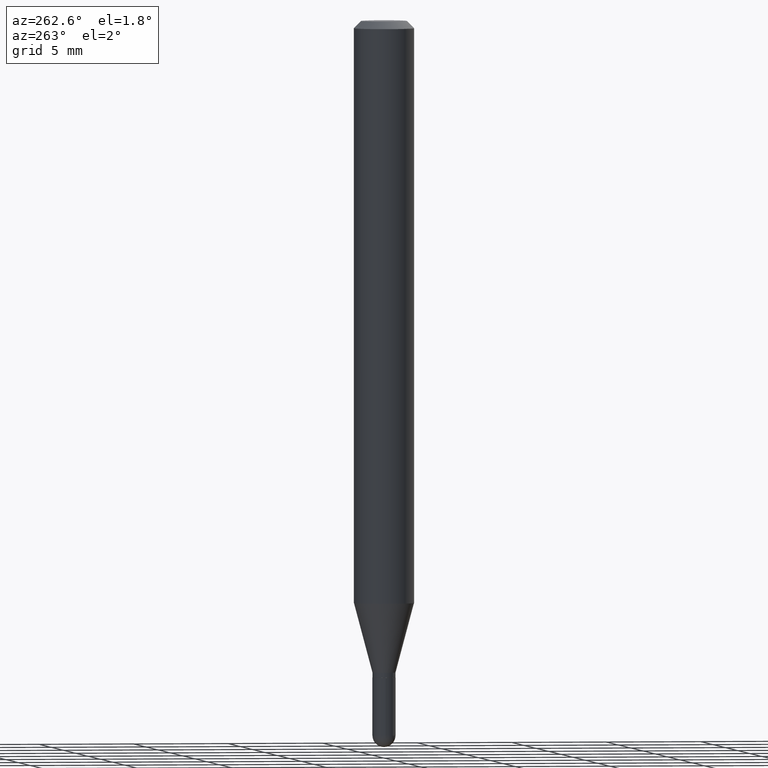
[diagram: clean part render]
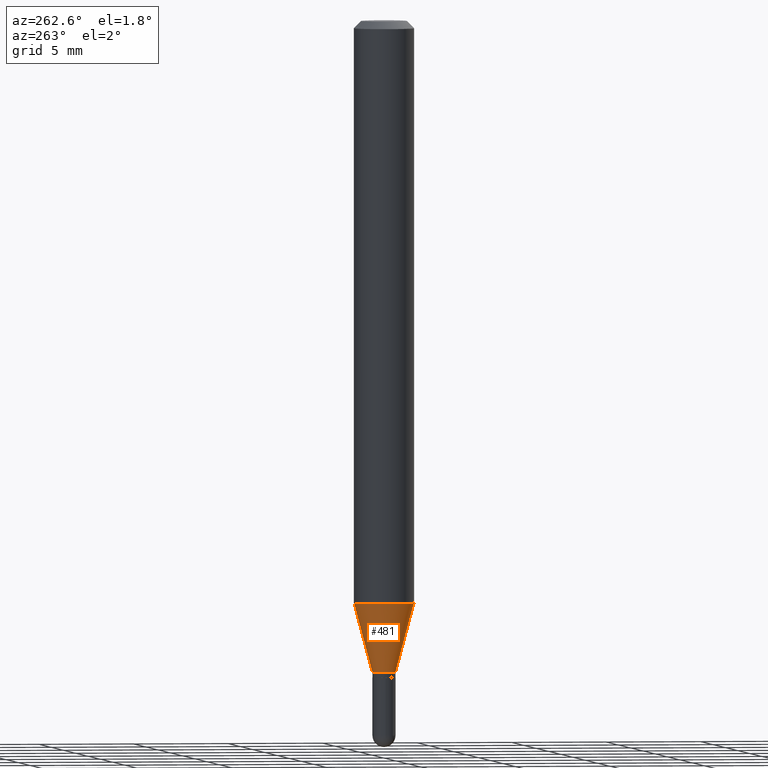
[diagram: same view with one face highlighted and labeled with its STEP entity id]
A machine part, auxiliary view. The second image highlights one B-rep face of the part: STEP entity #481.
In plain terms, the highlighted conical surface has half-angle 15 deg.
Its self-contained STEP definition (entity closure, byte-faithful):
#9 = LINE ( 'NONE', #160, #282 ) ;
#27 = VECTOR ( 'NONE', #382, 39.37007874015748143 ) ;
#38 = CIRCLE ( 'NONE', #319, 0.02399999999999992764 ) ;
#41 = ORIENTED_EDGE ( 'NONE', *, *, #52, .T. ) ;
#44 = DIRECTION ( 'NONE',  ( -2.445461197207060331E-29, 3.491492235332826977E-15, 1.000000000000000000 ) ) ;
#52 = EDGE_CURVE ( 'NONE', #468, #439, #38, .T. ) ;
#54 = DIRECTION ( 'NONE',  ( -2.445461197207060331E-29, 3.491492235332826977E-15, 1.000000000000000000 ) ) ;
#66 = AXIS2_PLACEMENT_3D ( 'NONE', #125, #54, #192 ) ;
#72 = CARTESIAN_POINT ( 'NONE',  ( -4.364351673553623829E-16, -0.06250000000000421885, -1.202316043908598475 ) ) ;
#81 = EDGE_LOOP ( 'NONE', ( #355, #41, #480, #466 ) ) ;
#110 = CIRCLE ( 'NONE', #66, 0.06250000000000000000 ) ;
#125 = CARTESIAN_POINT ( 'NONE',  ( 2.940217232157978499E-29, -4.197877131722955059E-15, -1.202316043908598697 ) ) ;
#135 = DIRECTION ( 'NONE',  ( -2.445461197207060331E-29, 3.491492235332826977E-15, 1.000000000000000000 ) ) ;
#157 = AXIS2_PLACEMENT_3D ( 'NONE', #483, #44, #359 ) ;
#160 = CARTESIAN_POINT ( 'NONE',  ( -1.675911042644369543E-16, -0.02400000000000462527, -1.346000000000000085 ) ) ;
#164 = VERTEX_POINT ( 'NONE', #294 ) ;
#178 = LINE ( 'NONE', #499, #27 ) ;
#192 = DIRECTION ( 'NONE',  ( -6.982962677686265922E-15, -1.000000000000000000, 4.370956789862821150E-15 ) ) ;
#197 = CONICAL_SURFACE ( 'NONE', #157, 0.02399999999999992764, 0.2617993877991507401 ) ;
#200 = EDGE_CURVE ( 'NONE', #468, #164, #178, .T. ) ;
#282 = VECTOR ( 'NONE', #285, 39.37007874015748854 ) ;
#285 = DIRECTION ( 'NONE',  ( -1.807323732225332900E-15, -0.2588190451025185745, 0.9659258262890687563 ) ) ;
#286 = DIRECTION ( 'NONE',  ( -6.982962677686265133E-15, -1.000000000000000000, 0.000000000000000000 ) ) ;
#294 = CARTESIAN_POINT ( 'NONE',  ( 4.440892098500918040E-16, 0.06249999999999577421, -1.202316043908599141 ) ) ;
#302 = VERTEX_POINT ( 'NONE', #72 ) ;
#319 = AXIS2_PLACEMENT_3D ( 'NONE', #376, #135, #286 ) ;
#327 = FACE_OUTER_BOUND ( 'NONE', #81, .T. ) ;
#355 = ORIENTED_EDGE ( 'NONE', *, *, #200, .F. ) ;
#359 = DIRECTION ( 'NONE',  ( -6.982962677686265133E-15, -1.000000000000000000, 0.000000000000000000 ) ) ;
#361 = CARTESIAN_POINT ( 'NONE',  ( -1.675911042644369543E-16, -0.02400000000000462527, -1.346000000000000085 ) ) ;
#376 = CARTESIAN_POINT ( 'NONE',  ( 3.291590771440703350E-29, -4.699548548757984927E-15, -1.346000000000000085 ) ) ;
#382 = DIRECTION ( 'NONE',  ( 1.839019923739603471E-15, 0.2588190451025254024, 0.9659258262890670910 ) ) ;
#409 = CARTESIAN_POINT ( 'NONE',  ( 3.073097332162742703E-16, 0.02399999999999522307, -1.346000000000000085 ) ) ;
#439 = VERTEX_POINT ( 'NONE', #361 ) ;
#449 = EDGE_CURVE ( 'NONE', #439, #302, #9, .T. ) ;
#466 = ORIENTED_EDGE ( 'NONE', *, *, #474, .F. ) ;
#468 = VERTEX_POINT ( 'NONE', #409 ) ;
#474 = EDGE_CURVE ( 'NONE', #164, #302, #110, .T. ) ;
#480 = ORIENTED_EDGE ( 'NONE', *, *, #449, .T. ) ;
#481 = ADVANCED_FACE ( 'NONE', ( #327 ), #197, .T. ) ;
#483 = CARTESIAN_POINT ( 'NONE',  ( 3.291590771440703350E-29, -4.699548548757984927E-15, -1.346000000000000085 ) ) ;
#499 = CARTESIAN_POINT ( 'NONE',  ( 1.705302565824563915E-16, 0.02399999999999522654, -1.346000000000000085 ) ) ;